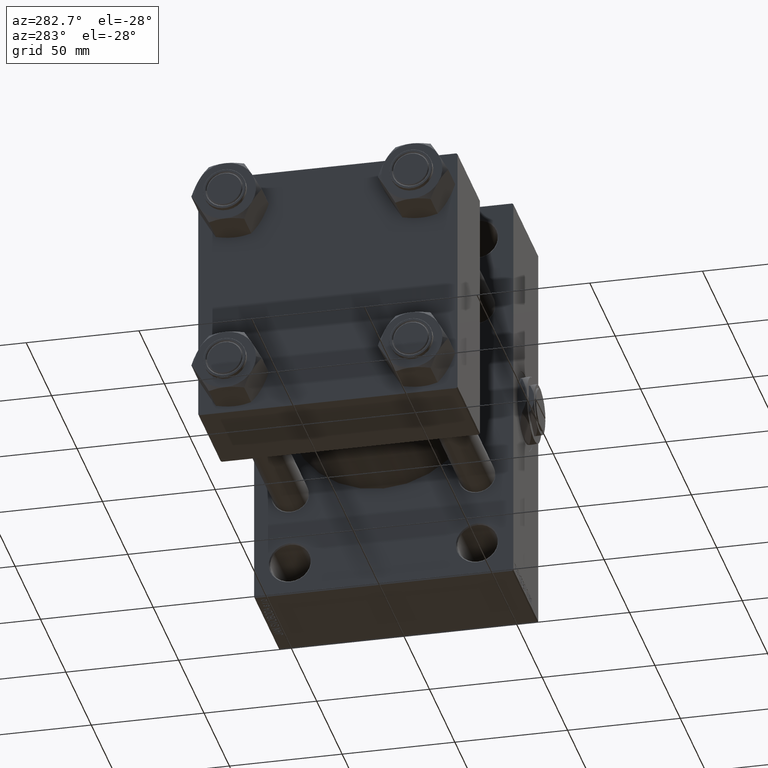
[diagram: clean part render]
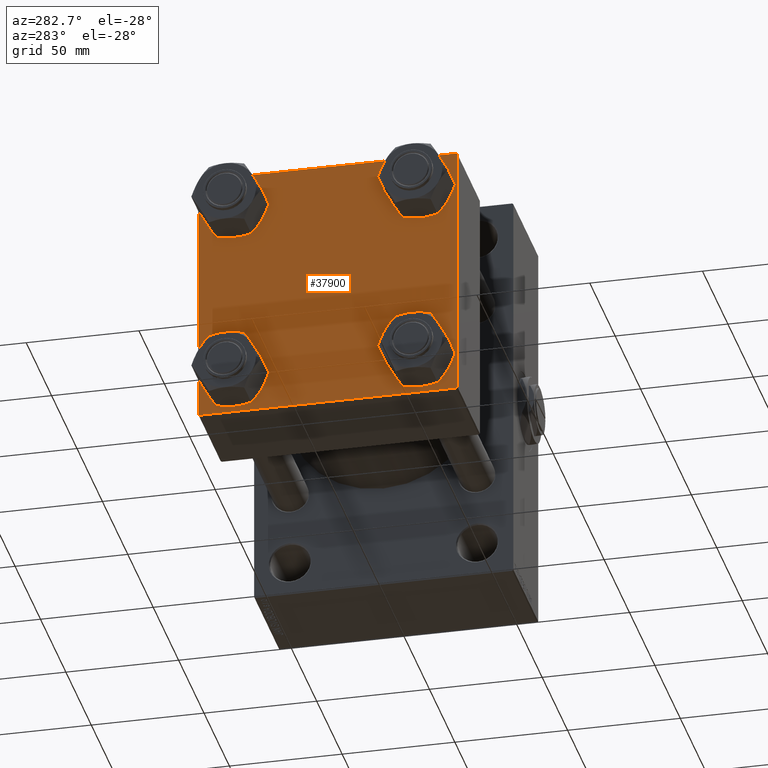
[diagram: same view with one face highlighted and labeled with its STEP entity id]
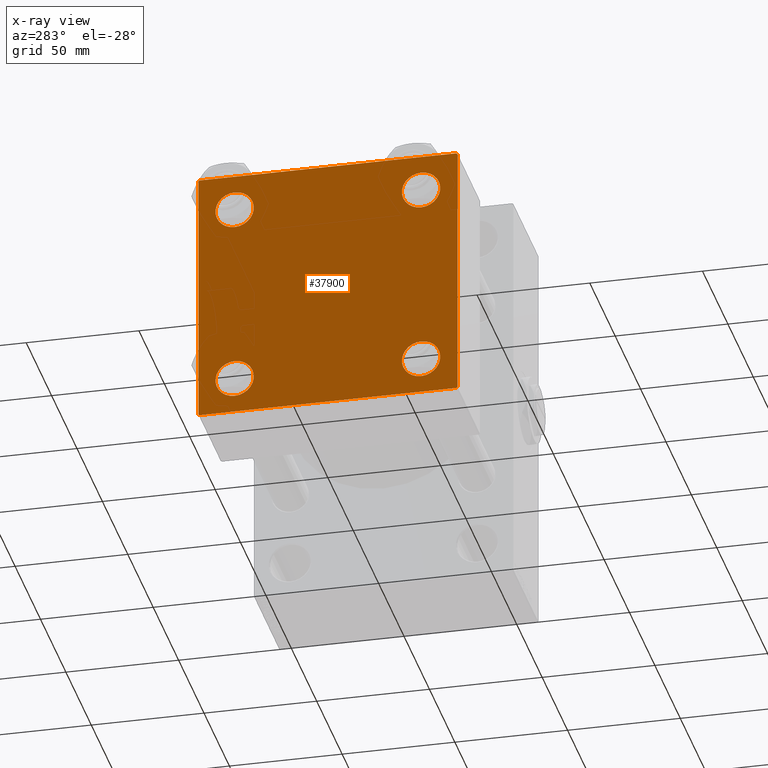
[diagram: x-ray of the same camera — body ghosted, the highlighted face saturated]
A machine part, auxiliary view. The second image highlights one B-rep face of the part: STEP entity #37900.
The next image is the same camera in x-ray: the body ghosted, the highlighted face saturated — about 0% of this face is hidden behind the body in this view.
In plain terms, the highlighted planar face has unit normal (-1, 0, 0).
Its self-contained STEP definition (entity closure, byte-faithful):
#293 = ORIENTED_EDGE ( 'NONE', *, *, #44882, .F. ) ;
#999 = DIRECTION ( 'NONE',  ( 0.000000000000000000, -1.000000000000000000, -1.206764157201257045E-16 ) ) ;
#1557 = AXIS2_PLACEMENT_3D ( 'NONE', #13032, #31795, #12780 ) ;
#1664 = CARTESIAN_POINT ( 'NONE',  ( 0.000000000000000000, 41.34999999999999432, -41.35000000000000142 ) ) ;
#1988 = EDGE_LOOP ( 'NONE', ( #18084, #18203 ) ) ;
#1994 = EDGE_CURVE ( 'NONE', #24675, #45526, #6774, .T. ) ;
#2311 = DIRECTION ( 'NONE',  ( -0.000000000000000000, 0.000000000000000000, 1.000000000000000000 ) ) ;
#3057 = EDGE_CURVE ( 'NONE', #19454, #19727, #45773, .T. ) ;
#3511 = ORIENTED_EDGE ( 'NONE', *, *, #46830, .T. ) ;
#3714 = DIRECTION ( 'NONE',  ( 0.000000000000000000, 0.000000000000000000, 1.000000000000000000 ) ) ;
#3847 = CARTESIAN_POINT ( 'NONE',  ( 0.000000000000000000, 57.25000000000081712, -57.24999999999922551 ) ) ;
#4119 = CARTESIAN_POINT ( 'NONE',  ( 0.000000000000000000, -57.25000000000000711, -57.25000000000000711 ) ) ;
#4262 = DIRECTION ( 'NONE',  ( 0.000000000000000000, 0.000000000000000000, 1.000000000000000000 ) ) ;
#4714 = DIRECTION ( 'NONE',  ( 0.000000000000000000, -1.000000000000000000, -1.206764157201257045E-16 ) ) ;
#4847 = DIRECTION ( 'NONE',  ( 1.000000000000000000, -0.000000000000000000, 0.000000000000000000 ) ) ;
#5797 = LINE ( 'NONE', #47589, #7641 ) ;
#5805 = FACE_OUTER_BOUND ( 'NONE', #47435, .T. ) ;
#6105 = VERTEX_POINT ( 'NONE', #40499 ) ;
#6372 = VECTOR ( 'NONE', #18485, 1000.000000000000000 ) ;
#6774 = LINE ( 'NONE', #26038, #9776 ) ;
#7352 = AXIS2_PLACEMENT_3D ( 'NONE', #48174, #40430, #13655 ) ;
#7481 = CARTESIAN_POINT ( 'NONE',  ( 0.000000000000000000, -57.50000000000000711, 57.49999999999999289 ) ) ;
#7641 = VECTOR ( 'NONE', #9794, 1000.000000000000114 ) ;
#7703 = EDGE_CURVE ( 'NONE', #8281, #24675, #11790, .T. ) ;
#7878 = AXIS2_PLACEMENT_3D ( 'NONE', #15193, #45721, #15443 ) ;
#7933 = ORIENTED_EDGE ( 'NONE', *, *, #8383, .T. ) ;
#8205 = CARTESIAN_POINT ( 'NONE',  ( 0.000000000000000000, 41.34999999999999432, -32.85000000000000853 ) ) ;
#8281 = VERTEX_POINT ( 'NONE', #36902 ) ;
#8383 = EDGE_CURVE ( 'NONE', #12784, #35187, #26016, .T. ) ;
#8459 = LINE ( 'NONE', #35233, #34624 ) ;
#8591 = VERTEX_POINT ( 'NONE', #39067 ) ;
#8801 = ORIENTED_EDGE ( 'NONE', *, *, #29622, .T. ) ;
#8984 = CIRCLE ( 'NONE', #7352, 8.499999999999992895 ) ;
#9208 = VECTOR ( 'NONE', #23609, 1000.000000000000114 ) ;
#9330 = ORIENTED_EDGE ( 'NONE', *, *, #3057, .T. ) ;
#9332 = FACE_BOUND ( 'NONE', #29207, .T. ) ;
#9776 = VECTOR ( 'NONE', #18767, 1000.000000000000000 ) ;
#9794 = DIRECTION ( 'NONE',  ( -0.000000000000000000, 0.7071067811865376918, 0.7071067811865573427 ) ) ;
#9801 = DIRECTION ( 'NONE',  ( -1.000000000000000000, 0.000000000000000000, -0.000000000000000000 ) ) ;
#10260 = ORIENTED_EDGE ( 'NONE', *, *, #25530, .T. ) ;
#11287 = DIRECTION ( 'NONE',  ( 0.000000000000000000, 0.7071067811865573427, -0.7071067811865376918 ) ) ;
#11790 = LINE ( 'NONE', #15045, #46750 ) ;
#12088 = AXIS2_PLACEMENT_3D ( 'NONE', #37267, #14251, #29507 ) ;
#12513 = CARTESIAN_POINT ( 'NONE',  ( 0.000000000000000000, -41.34999999999998721, 41.35000000000000853 ) ) ;
#12780 = DIRECTION ( 'NONE',  ( 0.000000000000000000, 0.000000000000000000, 1.000000000000000000 ) ) ;
#12784 = VERTEX_POINT ( 'NONE', #30179 ) ;
#13032 = CARTESIAN_POINT ( 'NONE',  ( 0.000000000000000000, -41.34999999999998721, -41.35000000000000853 ) ) ;
#13564 = FACE_BOUND ( 'NONE', #16213, .T. ) ;
#13655 = DIRECTION ( 'NONE',  ( 0.000000000000000000, 0.000000000000000000, 1.000000000000000000 ) ) ;
#13799 = PLANE ( 'NONE',  #19390 ) ;
#14251 = DIRECTION ( 'NONE',  ( 1.000000000000000000, -0.000000000000000000, 0.000000000000000000 ) ) ;
#15045 = CARTESIAN_POINT ( 'NONE',  ( 0.000000000000000000, 57.24999999999922551, 57.25000000000081712 ) ) ;
#15193 = CARTESIAN_POINT ( 'NONE',  ( 0.000000000000000000, 41.34999999999999432, -41.35000000000000142 ) ) ;
#15443 = DIRECTION ( 'NONE',  ( 0.000000000000000000, 0.000000000000000000, 1.000000000000000000 ) ) ;
#15601 = CARTESIAN_POINT ( 'NONE',  ( 0.000000000000000000, 41.34999999999999432, 41.35000000000000142 ) ) ;
#15620 = AXIS2_PLACEMENT_3D ( 'NONE', #15601, #4847, #23348 ) ;
#16213 = EDGE_LOOP ( 'NONE', ( #8801, #7933 ) ) ;
#17623 = ORIENTED_EDGE ( 'NONE', *, *, #26658, .F. ) ;
#17997 = CIRCLE ( 'NONE', #42017, 8.499999999999992895 ) ;
#18084 = ORIENTED_EDGE ( 'NONE', *, *, #24093, .T. ) ;
#18203 = ORIENTED_EDGE ( 'NONE', *, *, #29848, .T. ) ;
#18280 = VERTEX_POINT ( 'NONE', #34840 ) ;
#18485 = DIRECTION ( 'NONE',  ( 0.000000000000000000, 0.000000000000000000, -1.000000000000000000 ) ) ;
#18542 = VERTEX_POINT ( 'NONE', #27262 ) ;
#18767 = DIRECTION ( 'NONE',  ( 0.000000000000000000, 0.000000000000000000, -1.000000000000000000 ) ) ;
#18989 = ORIENTED_EDGE ( 'NONE', *, *, #7703, .T. ) ;
#19235 = LINE ( 'NONE', #27502, #46846 ) ;
#19390 = AXIS2_PLACEMENT_3D ( 'NONE', #36346, #9801, #2311 ) ;
#19454 = VERTEX_POINT ( 'NONE', #32148 ) ;
#19574 = DIRECTION ( 'NONE',  ( -0.000000000000000000, -0.7071067811865376918, -0.7071067811865573427 ) ) ;
#19727 = VERTEX_POINT ( 'NONE', #24017 ) ;
#20892 = DIRECTION ( 'NONE',  ( 1.000000000000000000, -0.000000000000000000, 0.000000000000000000 ) ) ;
#20972 = VERTEX_POINT ( 'NONE', #42550 ) ;
#21533 = CARTESIAN_POINT ( 'NONE',  ( 0.000000000000000000, 57.49999999999999289, -57.00000000000000711 ) ) ;
#22241 = LINE ( 'NONE', #7481, #6372 ) ;
#22710 = DIRECTION ( 'NONE',  ( 1.000000000000000000, -0.000000000000000000, 0.000000000000000000 ) ) ;
#23295 = EDGE_CURVE ( 'NONE', #19727, #19454, #8984, .T. ) ;
#23348 = DIRECTION ( 'NONE',  ( 0.000000000000000000, 0.000000000000000000, 1.000000000000000000 ) ) ;
#23609 = DIRECTION ( 'NONE',  ( 0.000000000000000000, -0.7071067811865474617, 0.7071067811865474617 ) ) ;
#23628 = ORIENTED_EDGE ( 'NONE', *, *, #23295, .T. ) ;
#24017 = CARTESIAN_POINT ( 'NONE',  ( 0.000000000000000000, -41.34999999999998721, 49.85000000000000853 ) ) ;
#24093 = EDGE_CURVE ( 'NONE', #24834, #18280, #35062, .T. ) ;
#24206 = AXIS2_PLACEMENT_3D ( 'NONE', #12513, #27526, #4262 ) ;
#24317 = CARTESIAN_POINT ( 'NONE',  ( 0.000000000000000000, -57.00000000000003553, 57.49999999999999289 ) ) ;
#24589 = FACE_BOUND ( 'NONE', #41964, .T. ) ;
#24675 = VERTEX_POINT ( 'NONE', #38003 ) ;
#24834 = VERTEX_POINT ( 'NONE', #8205 ) ;
#24838 = VECTOR ( 'NONE', #19574, 1000.000000000000114 ) ;
#25530 = EDGE_CURVE ( 'NONE', #35055, #18542, #26305, .T. ) ;
#26016 = CIRCLE ( 'NONE', #15620, 8.499999999999992895 ) ;
#26038 = CARTESIAN_POINT ( 'NONE',  ( 0.000000000000000000, 57.49999999999999289, 57.50000000000000711 ) ) ;
#26305 = CIRCLE ( 'NONE', #1557, 8.499999999999992895 ) ;
#26403 = ORIENTED_EDGE ( 'NONE', *, *, #38345, .T. ) ;
#26491 = AXIS2_PLACEMENT_3D ( 'NONE', #1664, #20892, #36175 ) ;
#26658 = EDGE_CURVE ( 'NONE', #29172, #20972, #22241, .T. ) ;
#27262 = CARTESIAN_POINT ( 'NONE',  ( 0.000000000000000000, -41.34999999999998721, -32.85000000000001563 ) ) ;
#27502 = CARTESIAN_POINT ( 'NONE',  ( 0.000000000000000000, 57.49999999999999289, 57.50000000000000711 ) ) ;
#27526 = DIRECTION ( 'NONE',  ( 1.000000000000000000, -0.000000000000000000, 0.000000000000000000 ) ) ;
#29172 = VERTEX_POINT ( 'NONE', #45388 ) ;
#29195 = EDGE_CURVE ( 'NONE', #45526, #6105, #38125, .T. ) ;
#29207 = EDGE_LOOP ( 'NONE', ( #23628, #9330 ) ) ;
#29507 = DIRECTION ( 'NONE',  ( 0.000000000000000000, 0.000000000000000000, 1.000000000000000000 ) ) ;
#29622 = EDGE_CURVE ( 'NONE', #35187, #12784, #48802, .T. ) ;
#29848 = EDGE_CURVE ( 'NONE', #18280, #24834, #31269, .T. ) ;
#30179 = CARTESIAN_POINT ( 'NONE',  ( 0.000000000000000000, 41.34999999999999432, 32.85000000000000853 ) ) ;
#31269 = CIRCLE ( 'NONE', #26491, 8.499999999999992895 ) ;
#31795 = DIRECTION ( 'NONE',  ( 1.000000000000000000, -0.000000000000000000, 0.000000000000000000 ) ) ;
#32145 = CARTESIAN_POINT ( 'NONE',  ( 0.000000000000000000, 41.34999999999999432, 49.85000000000000142 ) ) ;
#32148 = CARTESIAN_POINT ( 'NONE',  ( 0.000000000000000000, -41.34999999999998721, 32.85000000000001563 ) ) ;
#34624 = VECTOR ( 'NONE', #4714, 1000.000000000000000 ) ;
#34840 = CARTESIAN_POINT ( 'NONE',  ( 0.000000000000000000, 41.34999999999999432, -49.85000000000000142 ) ) ;
#35055 = VERTEX_POINT ( 'NONE', #42663 ) ;
#35062 = CIRCLE ( 'NONE', #7878, 8.499999999999992895 ) ;
#35131 = LINE ( 'NONE', #4119, #9208 ) ;
#35139 = ORIENTED_EDGE ( 'NONE', *, *, #1994, .T. ) ;
#35187 = VERTEX_POINT ( 'NONE', #32145 ) ;
#35233 = CARTESIAN_POINT ( 'NONE',  ( 0.000000000000000000, 57.49999999999999289, -57.49999999999999289 ) ) ;
#36175 = DIRECTION ( 'NONE',  ( 0.000000000000000000, 0.000000000000000000, 1.000000000000000000 ) ) ;
#36346 = CARTESIAN_POINT ( 'NONE',  ( 0.000000000000000000, 0.000000000000000000, 0.000000000000000000 ) ) ;
#36902 = CARTESIAN_POINT ( 'NONE',  ( 0.000000000000000000, 57.00000000000000711, 57.50000000000000711 ) ) ;
#37267 = CARTESIAN_POINT ( 'NONE',  ( 0.000000000000000000, 41.34999999999999432, 41.35000000000000142 ) ) ;
#37534 = ORIENTED_EDGE ( 'NONE', *, *, #46823, .T. ) ;
#37900 = ADVANCED_FACE ( 'NONE', ( #9332, #24589, #40090, #13564, #5805 ), #13799, .T. ) ;
#38003 = CARTESIAN_POINT ( 'NONE',  ( 0.000000000000000000, 57.49999999999999289, 57.00000000000003553 ) ) ;
#38125 = LINE ( 'NONE', #3847, #24838 ) ;
#38345 = EDGE_CURVE ( 'NONE', #6105, #8591, #8459, .T. ) ;
#39067 = CARTESIAN_POINT ( 'NONE',  ( 0.000000000000000000, -57.00000000000000711, -57.50000000000000711 ) ) ;
#40090 = FACE_BOUND ( 'NONE', #1988, .T. ) ;
#40430 = DIRECTION ( 'NONE',  ( 1.000000000000000000, -0.000000000000000000, 0.000000000000000000 ) ) ;
#40499 = CARTESIAN_POINT ( 'NONE',  ( 0.000000000000000000, 57.00000000000002132, -57.49999999999999289 ) ) ;
#41568 = ORIENTED_EDGE ( 'NONE', *, *, #42191, .T. ) ;
#41964 = EDGE_LOOP ( 'NONE', ( #37534, #10260 ) ) ;
#42017 = AXIS2_PLACEMENT_3D ( 'NONE', #44081, #22710, #3714 ) ;
#42191 = EDGE_CURVE ( 'NONE', #8591, #20972, #35131, .T. ) ;
#42550 = CARTESIAN_POINT ( 'NONE',  ( 0.000000000000000000, -57.50000000000000711, -57.00000000000000711 ) ) ;
#42663 = CARTESIAN_POINT ( 'NONE',  ( 0.000000000000000000, -41.34999999999998721, -49.85000000000000853 ) ) ;
#43563 = VERTEX_POINT ( 'NONE', #24317 ) ;
#44081 = CARTESIAN_POINT ( 'NONE',  ( 0.000000000000000000, -41.34999999999998721, -41.35000000000000853 ) ) ;
#44882 = EDGE_CURVE ( 'NONE', #8281, #43563, #19235, .T. ) ;
#45388 = CARTESIAN_POINT ( 'NONE',  ( 0.000000000000000000, -57.50000000000000711, 57.00000000000000711 ) ) ;
#45526 = VERTEX_POINT ( 'NONE', #21533 ) ;
#45721 = DIRECTION ( 'NONE',  ( 1.000000000000000000, -0.000000000000000000, 0.000000000000000000 ) ) ;
#45773 = CIRCLE ( 'NONE', #24206, 8.499999999999992895 ) ;
#46750 = VECTOR ( 'NONE', #11287, 1000.000000000000114 ) ;
#46823 = EDGE_CURVE ( 'NONE', #18542, #35055, #17997, .T. ) ;
#46830 = EDGE_CURVE ( 'NONE', #29172, #43563, #5797, .T. ) ;
#46846 = VECTOR ( 'NONE', #999, 1000.000000000000000 ) ;
#47435 = EDGE_LOOP ( 'NONE', ( #35139, #48481, #26403, #41568, #17623, #3511, #293, #18989 ) ) ;
#47589 = CARTESIAN_POINT ( 'NONE',  ( -0.000000000000000000, -57.25000000000081712, 57.24999999999922551 ) ) ;
#48174 = CARTESIAN_POINT ( 'NONE',  ( 0.000000000000000000, -41.34999999999998721, 41.35000000000000853 ) ) ;
#48481 = ORIENTED_EDGE ( 'NONE', *, *, #29195, .T. ) ;
#48802 = CIRCLE ( 'NONE', #12088, 8.499999999999992895 ) ;